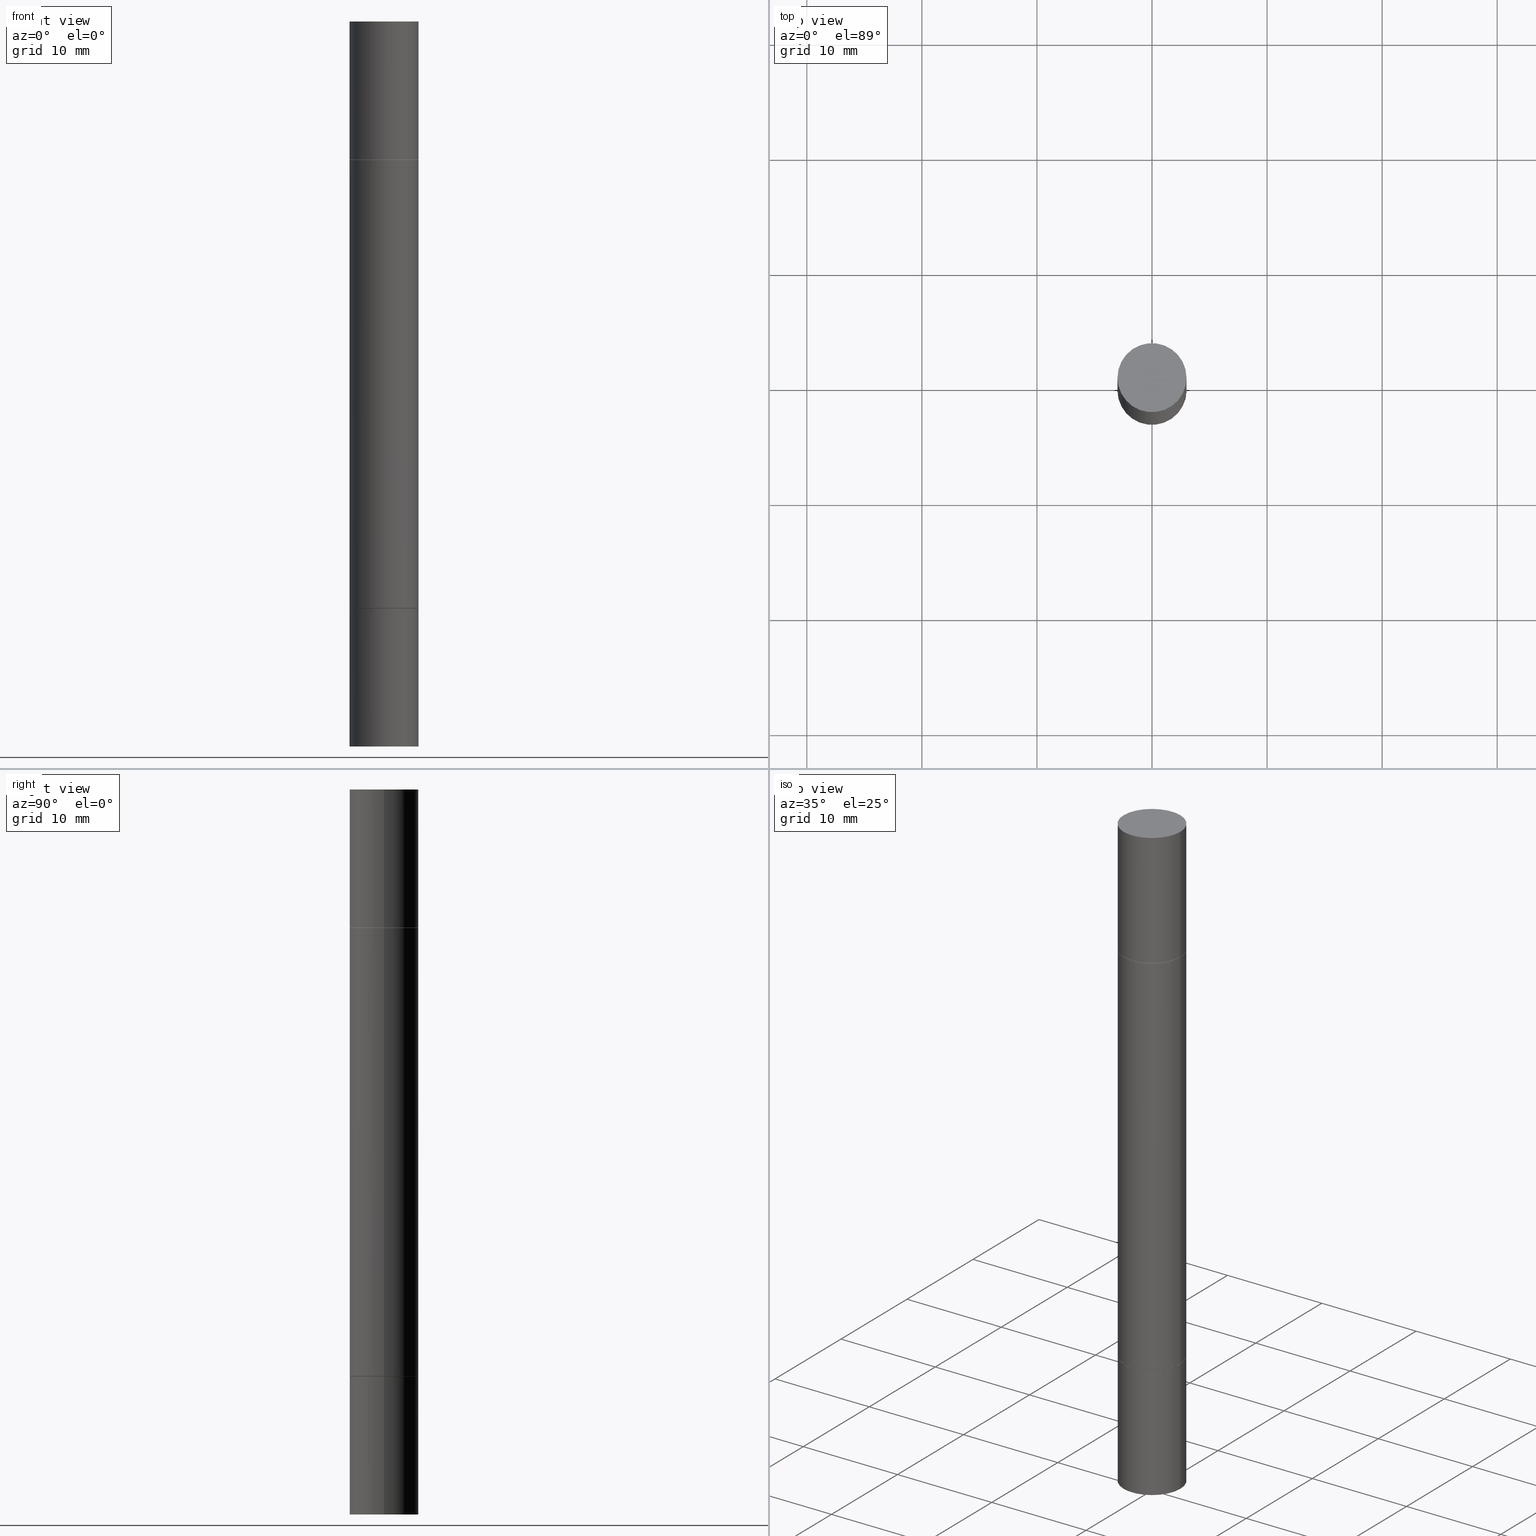
[diagram: canonical four-view strip — front | top / right | iso, engineering-drawing reading convention]
A machine part, canonical four-view strip (front | top / right | iso — engineering-drawing reading convention). The complete STEP part file that produces these views, byte-faithful:
ISO-10303-21;
HEADER;
FILE_DESCRIPTION (( 'STEP AP203' ),
    '1' );
FILE_NAME ('49040.STEP',
    '2024-03-04T15:52:24',
    ( '' ),
    ( '' ),
    'SwSTEP 2.0',
    'SolidWorks 2023',
    '' );
FILE_SCHEMA (( 'CONFIG_CONTROL_DESIGN' ));
ENDSEC;

DATA;
#1 = EDGE_LOOP ( 'NONE', ( #193, #551, #448, #294 ) ) ;
#2 = DATE_AND_TIME ( #634, #342 ) ;
#3 = CARTESIAN_POINT ( 'NONE',  ( 4.907811347132950827E-29, -7.007053898924308703E-15, -2.006899999999999906 ) ) ;
#4 = DIRECTION ( 'NONE',  ( 0.000000000000000000, 1.000000000000000000, -4.626330217890374069E-15 ) ) ;
#5 = CC_DESIGN_PERSON_AND_ORGANIZATION_ASSIGNMENT ( #633, #156, ( #97 ) ) ;
#6 = DIRECTION ( 'NONE',  ( 0.000000000000000000, 0.000000000000000000, 1.000000000000000000 ) ) ;
#7 = ORIENTED_EDGE ( 'NONE', *, *, #533, .T. ) ;
#8 = CONICAL_SURFACE ( 'NONE', #378, 0.1170999999999999958, 0.7853981633975507526 ) ;
#9 = CARTESIAN_POINT ( 'NONE',  ( -0.1180999999999999966, -7.851443812715413599E-15, -2.480299999999999727 ) ) ;
#10 = APPROVAL_PERSON_ORGANIZATION ( #108, #164, #311 ) ;
#11 = CYLINDRICAL_SURFACE ( 'NONE', #224, 0.1180999999999998856 ) ;
#12 = DIRECTION ( 'NONE',  ( 0.7071067811866199593, -7.407546758114499403E-15, -0.7071067811864750752 ) ) ;
#13 = ADVANCED_FACE ( 'NONE', ( #497 ), #30, .F. ) ;
#14 = ADVANCED_FACE ( 'NONE', ( #295 ), #35, .T. ) ;
#15 = DIRECTION ( 'NONE',  ( -2.445468806185136597E-29, 3.491481338843145583E-15, 1.000000000000000000 ) ) ;
#16 = DIRECTION ( 'NONE',  ( 1.000000000000000000, -6.982962677686265133E-15, 0.000000000000000000 ) ) ;
#17 = CARTESIAN_POINT ( 'NONE',  ( 0.1180999999999999966, -2.476474751543767778E-15, -0.4733999999999996544 ) ) ;
#18 = LINE ( 'NONE', #70, #666 ) ;
#19 = CALENDAR_DATE ( 2024, 4, 3 ) ;
#20 = PLANE ( 'NONE',  #225 ) ;
#21 = CIRCLE ( 'NONE', #216, 0.1180999999999999966 ) ;
#22 = DIRECTION ( 'NONE',  ( 1.000000000000000000, -6.982962677686265133E-15, 0.000000000000000000 ) ) ;
#23 = DIRECTION ( 'NONE',  ( -2.445468806185136597E-29, -3.492890411551752677E-15, -1.000000000000000000 ) ) ;
#24 = CARTESIAN_POINT ( 'NONE',  ( 4.910256815939135870E-29, -7.010545380263151710E-15, -2.007899999999999796 ) ) ;
#25 =( LENGTH_UNIT ( ) NAMED_UNIT ( * ) SI_UNIT ( $, .METRE. ) );
#26 = EDGE_LOOP ( 'NONE', ( #33, #87, #304, #462 ) ) ;
#27 = DIRECTION ( 'NONE',  ( -2.445468806185136597E-29, -3.492890411551752677E-15, -1.000000000000000000 ) ) ;
#28 = VERTEX_POINT ( 'NONE', #561 ) ;
#29 = DIRECTION ( 'NONE',  ( 1.000000000000000000, -6.982962677686264344E-15, 0.000000000000000000 ) ) ;
#30 = PLANE ( 'NONE',  #451 ) ;
#31 = CARTESIAN_POINT ( 'NONE',  ( 4.910256815939135870E-29, -1.648293968897468754E-15, -0.4723999999999998756 ) ) ;
#32 = EDGE_CURVE ( 'NONE', #351, #80, #539, .T. ) ;
#33 = ORIENTED_EDGE ( 'NONE', *, *, #488, .F. ) ;
#34 = DIRECTION ( 'NONE',  ( -2.438088387897959769E-29, -3.492890411551753071E-15, -1.000000000000000000 ) ) ;
#35 = PLANE ( 'NONE',  #151 ) ;
#36 = CARTESIAN_POINT ( 'NONE',  ( 4.907811347132950827E-29, -1.651786859309018332E-15, -0.4733999999999996544 ) ) ;
#37 = ORIENTED_EDGE ( 'NONE', *, *, #176, .T. ) ;
#38 = CARTESIAN_POINT ( 'NONE',  ( 0.1180999999999999966, -9.486356518486979401E-15, -2.480299999999999727 ) ) ;
#39 = EDGE_LOOP ( 'NONE', ( #442, #37, #48, #51 ) ) ;
#40 = AXIS2_PLACEMENT_3D ( 'NONE', #337, #229, #154 ) ;
#41 = DIRECTION ( 'NONE',  ( -0.7071067811866199593, 2.381258160592016740E-15, -0.7071067811864750752 ) ) ;
#42 = AXIS2_PLACEMENT_3D ( 'NONE', #307, #512, #49 ) ;
#43 = EDGE_LOOP ( 'NONE', ( #542, #612 ) ) ;
#44 = ADVANCED_FACE ( 'NONE', ( #291 ), #333, .T. ) ;
#45 = CYLINDRICAL_SURFACE ( 'NONE', #356, 0.1180999999999998856 ) ;
#46 = EDGE_LOOP ( 'NONE', ( #339, #657, #395, #676 ) ) ;
#47 = SHAPE_DEFINITION_REPRESENTATION ( #350, #149 ) ;
#48 = ORIENTED_EDGE ( 'NONE', *, *, #199, .T. ) ;
#49 = DIRECTION ( 'NONE',  ( 1.000000000000000000, -6.982962677686265133E-15, 0.000000000000000000 ) ) ;
#50 = MANIFOLD_SOLID_BREP ( 'Body-Move/Copy2[1]', #184 ) ;
#51 = ORIENTED_EDGE ( 'NONE', *, *, #252, .F. ) ;
#52 = MANIFOLD_SOLID_BREP ( 'Combine1', #492 ) ;
#53 = COORDINATED_UNIVERSAL_TIME_OFFSET ( 5, 0, .BEHIND. ) ;
#54 = VERTEX_POINT ( 'NONE', #192 ) ;
#55 = EDGE_CURVE ( 'NONE', #186, #389, #441, .T. ) ;
#56 = CARTESIAN_POINT ( 'NONE',  ( 6.065496279980994755E-29, -8.659921164732655335E-15, -2.480300000000000171 ) ) ;
#57 = EDGE_CURVE ( 'NONE', #300, #489, #526, .T. ) ;
#58 = PERSON_AND_ORGANIZATION ( #310, #584 ) ;
#59 = VECTOR ( 'NONE', #345, 39.37007874015748143 ) ;
#60 = DIRECTION ( 'NONE',  ( -2.445468806185136877E-29, -3.492890411551753071E-15, -1.000000000000000000 ) ) ;
#61 = CC_DESIGN_APPROVAL ( #231, ( #173 ) ) ;
#62 = ADVANCED_FACE ( 'NONE', ( #248 ), #284, .F. ) ;
#63 = CARTESIAN_POINT ( 'NONE',  ( 8.246878922347970734E-16, 0.1180999999999983452, -0.4723999999999998756 ) ) ;
#64 = EDGE_CURVE ( 'NONE', #489, #509, #90, .T. ) ;
#65 = DIRECTION ( 'NONE',  ( 1.000000000000000000, -6.982962677686264344E-15, 0.000000000000000000 ) ) ;
#66 = CARTESIAN_POINT ( 'NONE',  ( -0.1170999999999999958, -6.178499836688074522E-15, -2.007899999999999796 ) ) ;
#67 = CYLINDRICAL_SURFACE ( 'NONE', #113, 0.1180999999999999966 ) ;
#68 = CC_DESIGN_PERSON_AND_ORGANIZATION_ASSIGNMENT ( #293, #515, ( #409 ) ) ;
#69 = SECURITY_CLASSIFICATION_LEVEL ( 'unclassified' ) ;
#70 = CARTESIAN_POINT ( 'NONE',  ( 0.1180999999999998856, -9.486356518486979401E-15, -2.480299999999999727 ) ) ;
#71 = DIRECTION ( 'NONE',  ( -2.445468806185136877E-29, -3.492890411551753071E-15, -1.000000000000000000 ) ) ;
#72 = AXIS2_PLACEMENT_3D ( 'NONE', #425, #208, #520 ) ;
#73 = DIRECTION ( 'NONE',  ( 1.000000000000000000, -6.982962677686266711E-15, 4.876176775795936353E-29 ) ) ;
#74 = ORIENTED_EDGE ( 'NONE', *, *, #648, .T. ) ;
#75 = DIRECTION ( 'NONE',  ( 1.000000000000000000, -6.982962677686266711E-15, 0.000000000000000000 ) ) ;
#76 = ADVANCED_FACE ( 'NONE', ( #355 ), #418, .F. ) ;
#77 = CARTESIAN_POINT ( 'NONE',  ( 4.907811347132950827E-29, -7.007053898924308703E-15, -2.006899999999999906 ) ) ;
#78 = LINE ( 'NONE', #532, #590 ) ;
#79 = EDGE_LOOP ( 'NONE', ( #576, #459, #465, #617 ) ) ;
#80 = VERTEX_POINT ( 'NONE', #327 ) ;
#81 = LINE ( 'NONE', #102, #152 ) ;
#82 = DIRECTION ( 'NONE',  ( 2.445468806185136597E-29, 3.492890411551752677E-15, 1.000000000000000000 ) ) ;
#83 = ADVANCED_FACE ( 'NONE', ( #523 ), #11, .T. ) ;
#84 = EDGE_LOOP ( 'NONE', ( #7, #496 ) ) ;
#85 = CIRCLE ( 'NONE', #569, 0.1170999999999999958 ) ;
#86 = CIRCLE ( 'NONE', #159, 0.1170999999999999958 ) ;
#87 = ORIENTED_EDGE ( 'NONE', *, *, #111, .T. ) ;
#88 = EDGE_CURVE ( 'NONE', #246, #546, #433, .T. ) ;
#89 = DIRECTION ( 'NONE',  ( -2.445468806185136597E-29, 3.491481338843145583E-15, 1.000000000000000000 ) ) ;
#90 = LINE ( 'NONE', #406, #170 ) ;
#91 = EDGE_LOOP ( 'NONE', ( #454, #623, #227, #116 ) ) ;
#92 = ORIENTED_EDGE ( 'NONE', *, *, #282, .T. ) ;
#93 = CARTESIAN_POINT ( 'NONE',  ( 4.907811347132950827E-29, -1.651786859309018332E-15, -0.4733999999999996544 ) ) ;
#94 = DIRECTION ( 'NONE',  ( -2.445468806185136597E-29, -3.492890411551752677E-15, -1.000000000000000000 ) ) ;
#95 = ORIENTED_EDGE ( 'NONE', *, *, #199, .F. ) ;
#96 = DIRECTION ( 'NONE',  ( -2.445468806185136597E-29, 3.491481338843145583E-15, 1.000000000000000000 ) ) ;
#97 = PRODUCT ( '49040', '49040', '', ( #627 ) ) ;
#98 = DIRECTION ( 'NONE',  ( 1.000000000000000000, -6.982962677686265133E-15, 0.000000000000000000 ) ) ;
#99 = VERTEX_POINT ( 'NONE', #118 ) ;
#100 = CARTESIAN_POINT ( 'NONE',  ( -0.1180999999999998856, -2.180648907300854672E-15, -1.240149999999999864 ) ) ;
#101 = AXIS2_PLACEMENT_3D ( 'NONE', #3, #115, #366 ) ;
#102 = CARTESIAN_POINT ( 'NONE',  ( -0.1170999999999999958, -8.449296533584223333E-16, -0.4723999999999998756 ) ) ;
#103 = DIRECTION ( 'NONE',  ( 1.000000000000000000, -6.982962677686265133E-15, 0.000000000000000000 ) ) ;
#104 = CIRCLE ( 'NONE', #610, 0.1170999999999999958 ) ;
#105 = ORIENTED_EDGE ( 'NONE', *, *, #488, .T. ) ;
#106 = CYLINDRICAL_SURFACE ( 'NONE', #42, 0.1180999999999999966 ) ;
#107 = CC_DESIGN_PERSON_AND_ORGANIZATION_ASSIGNMENT ( #274, #485, ( #173 ) ) ;
#108 = PERSON_AND_ORGANIZATION ( #310, #584 ) ;
#109 = EDGE_CURVE ( 'NONE', #439, #509, #507, .T. ) ;
#110 = ORIENTED_EDGE ( 'NONE', *, *, #537, .F. ) ;
#111 = EDGE_CURVE ( 'NONE', #80, #351, #434, .T. ) ;
#112 = CIRCLE ( 'NONE', #215, 0.1180999999999999966 ) ;
#113 = AXIS2_PLACEMENT_3D ( 'NONE', #535, #478, #73 ) ;
#114 = DIRECTION ( 'NONE',  ( 2.445468806185136597E-29, 3.492890411551752677E-15, 1.000000000000000000 ) ) ;
#115 = DIRECTION ( 'NONE',  ( -2.445468806185136597E-29, 3.491481338843145583E-15, 1.000000000000000000 ) ) ;
#116 = ORIENTED_EDGE ( 'NONE', *, *, #421, .T. ) ;
#117 = AXIS2_PLACEMENT_3D ( 'NONE', #547, #141, #552 ) ;
#118 = CARTESIAN_POINT ( 'NONE',  ( 0.1180999999999999966, -2.472981861132215636E-15, -0.4723999999999995980 ) ) ;
#119 = FACE_OUTER_BOUND ( 'NONE', #39, .T. ) ;
#120 = PRODUCT_RELATED_PRODUCT_CATEGORY ( 'detail', '', ( #97 ) ) ;
#121 = DIRECTION ( 'NONE',  ( -1.000000000000000000, 6.982962677686265922E-15, -9.839502134516470631E-33 ) ) ;
#122 = FACE_OUTER_BOUND ( 'NONE', #43, .T. ) ;
#123 = FACE_OUTER_BOUND ( 'NONE', #289, .T. ) ;
#124 = AXIS2_PLACEMENT_3D ( 'NONE', #588, #114, #264 ) ;
#125 = PRODUCT_DEFINITION_FORMATION_WITH_SPECIFIED_SOURCE ( 'ANY', '', #97, .NOT_KNOWN. ) ;
#126 = EDGE_CURVE ( 'NONE', #574, #54, #640, .T. ) ;
#127 = DIRECTION ( 'NONE',  ( 1.000000000000000000, -6.982962677686264344E-15, 0.000000000000000000 ) ) ;
#128 = VERTEX_POINT ( 'NONE', #457 ) ;
#129 = ADVANCED_FACE ( 'NONE', ( #502 ), #255, .T. ) ;
#130 = EDGE_LOOP ( 'NONE', ( #501, #545 ) ) ;
#131 = ORIENTED_EDGE ( 'NONE', *, *, #155, .T. ) ;
#132 = DIRECTION ( 'NONE',  ( 0.000000000000000000, 1.000000000000000000, -4.626330217890374069E-15 ) ) ;
#133 = EDGE_CURVE ( 'NONE', #404, #259, #135, .T. ) ;
#134 = VERTEX_POINT ( 'NONE', #655 ) ;
#135 = CIRCLE ( 'NONE', #275, 0.1180999999999998856 ) ;
#136 = LOCAL_TIME ( 10, 52, 24.00000000000000000, #53 ) ;
#137 = ORIENTED_EDGE ( 'NONE', *, *, #64, .T. ) ;
#138 = LINE ( 'NONE', #493, #59 ) ;
#139 = ORIENTED_EDGE ( 'NONE', *, *, #383, .F. ) ;
#140 = ORIENTED_EDGE ( 'NONE', *, *, #637, .T. ) ;
#141 = DIRECTION ( 'NONE',  ( 2.445468806185136597E-29, 3.492890411551752677E-15, 1.000000000000000000 ) ) ;
#142 = VERTEX_POINT ( 'NONE', #444 ) ;
#143 = CARTESIAN_POINT ( 'NONE',  ( 4.910256815939135870E-29, -7.010545380263151710E-15, -2.007899999999999796 ) ) ;
#144 = DIRECTION ( 'NONE',  ( 0.000000000000000000, 3.492185875197449524E-15, 1.000000000000000000 ) ) ;
#145 = CYLINDRICAL_SURFACE ( 'NONE', #428, 0.1180999999999999966 ) ;
#146 = CIRCLE ( 'NONE', #101, 0.1180999999999999966 ) ;
#147 = DIRECTION ( 'NONE',  ( 2.438088387897959769E-29, 3.492890411551753071E-15, 1.000000000000000000 ) ) ;
#148 = ADVANCED_FACE ( 'NONE', ( #382 ), #567, .F. ) ;
#149 = ADVANCED_BREP_SHAPE_REPRESENTATION ( '49040', ( #50, #500, #494, #267, #52, #571 ), #554 ) ;
#150 = DIRECTION ( 'NONE',  ( 2.445468806185136597E-29, 3.492890411551752677E-15, 1.000000000000000000 ) ) ;
#151 = AXIS2_PLACEMENT_3D ( 'NONE', #239, #663, #348 ) ;
#152 = VECTOR ( 'NONE', #41, 39.37007874015748143 ) ;
#153 = AXIS2_PLACEMENT_3D ( 'NONE', #568, #675, #103 ) ;
#154 = DIRECTION ( 'NONE',  ( 1.000000000000000000, -6.982962677686264344E-15, 0.000000000000000000 ) ) ;
#155 = EDGE_CURVE ( 'NONE', #54, #574, #204, .T. ) ;
#156 = PERSON_AND_ORGANIZATION_ROLE ( 'design_owner' ) ;
#157 = CARTESIAN_POINT ( 'NONE',  ( 6.065496279980994755E-29, 1.747461519580534218E-18, 5.463695987328526437E-16 ) ) ;
#158 = CC_DESIGN_DATE_AND_TIME_ASSIGNMENT ( #214, #524, ( #409 ) ) ;
#159 = AXIS2_PLACEMENT_3D ( 'NONE', #490, #531, #270 ) ;
#160 = DIRECTION ( 'NONE',  ( 2.438088387897959769E-29, 3.492890411551753071E-15, 1.000000000000000000 ) ) ;
#161 = DIRECTION ( 'NONE',  ( 2.445468806185136597E-29, 3.492890411551752677E-15, 1.000000000000000000 ) ) ;
#162 = LINE ( 'NONE', #381, #388 ) ;
#163 = CARTESIAN_POINT ( 'NONE',  ( 0.000000000000000000, -8.661668626252231138E-15, -2.480299999999999727 ) ) ;
#164 = APPROVAL ( #205, 'UNSPECIFIED' ) ;
#165 = ADVANCED_FACE ( 'NONE', ( #183 ), #145, .T. ) ;
#166 = DIRECTION ( 'NONE',  ( 1.000000000000000000, -6.982962677686265133E-15, 0.000000000000000000 ) ) ;
#167 = COORDINATED_UNIVERSAL_TIME_OFFSET ( 5, 0, .BEHIND. ) ;
#168 = DIRECTION ( 'NONE',  ( 2.438088387897960049E-29, -3.491481338843145188E-15, -1.000000000000000000 ) ) ;
#169 = PLANE ( 'NONE',  #429 ) ;
#170 = VECTOR ( 'NONE', #468, 39.37007874015748143 ) ;
#171 = DATE_TIME_ROLE ( 'classification_date' ) ;
#172 = AXIS2_PLACEMENT_3D ( 'NONE', #93, #449, #665 ) ;
#173 = SECURITY_CLASSIFICATION ( '', '', #69 ) ;
#174 = ORIENTED_EDGE ( 'NONE', *, *, #320, .T. ) ;
#175 = DIRECTION ( 'NONE',  ( 1.000000000000000000, -6.982962677686271444E-15, 0.000000000000000000 ) ) ;
#176 = EDGE_CURVE ( 'NONE', #343, #546, #81, .T. ) ;
#177 = ORIENTED_EDGE ( 'NONE', *, *, #238, .F. ) ;
#178 = ADVANCED_FACE ( 'NONE', ( #671 ), #387, .T. ) ;
#179 = ORIENTED_EDGE ( 'NONE', *, *, #471, .F. ) ;
#180 = CARTESIAN_POINT ( 'NONE',  ( 4.910256815939135870E-29, -1.648293968897468754E-15, -0.4723999999999998756 ) ) ;
#181 = DIRECTION ( 'NONE',  ( -2.438088387897960049E-29, 3.491481338843145188E-15, 1.000000000000000000 ) ) ;
#182 = EDGE_LOOP ( 'NONE', ( #384, #470, #92, #504 ) ) ;
#183 = FACE_OUTER_BOUND ( 'NONE', #236, .T. ) ;
#184 = CLOSED_SHELL ( 'NONE', ( #165, #575, #148, #467 ) ) ;
#185 = CIRCLE ( 'NONE', #474, 0.1180999999999999966 ) ;
#186 = VERTEX_POINT ( 'NONE', #562 ) ;
#187 = AXIS2_PLACEMENT_3D ( 'NONE', #77, #283, #380 ) ;
#188 = FACE_OUTER_BOUND ( 'NONE', #251, .T. ) ;
#189 = AXIS2_PLACEMENT_3D ( 'NONE', #253, #619, #463 ) ;
#190 = ORIENTED_EDGE ( 'NONE', *, *, #537, .T. ) ;
#191 = DIRECTION ( 'NONE',  ( -2.445468806185136597E-29, -3.492890411551752677E-15, -1.000000000000000000 ) ) ;
#192 = CARTESIAN_POINT ( 'NONE',  ( -0.1180999999999999966, -1.304844015212474234E-17, -0.4723999999999995980 ) ) ;
#193 = ORIENTED_EDGE ( 'NONE', *, *, #565, .F. ) ;
#194 = LINE ( 'NONE', #303, #527 ) ;
#195 = CARTESIAN_POINT ( 'NONE',  ( 3.032748139990496817E-29, -4.329960582366326879E-15, -1.240149999999999864 ) ) ;
#196 = CARTESIAN_POINT ( 'NONE',  ( 8.246878922347970734E-16, 0.1180999999999983452, -0.4723999999999998756 ) ) ;
#197 = EDGE_LOOP ( 'NONE', ( #306, #336, #137, #437 ) ) ;
#198 = CIRCLE ( 'NONE', #589, 0.1180999999999999966 ) ;
#199 = EDGE_CURVE ( 'NONE', #546, #246, #112, .T. ) ;
#200 = EDGE_CURVE ( 'NONE', #389, #134, #553, .T. ) ;
#201 = EDGE_CURVE ( 'NONE', #407, #28, #185, .T. ) ;
#202 = FACE_OUTER_BOUND ( 'NONE', #674, .T. ) ;
#203 = VERTEX_POINT ( 'NONE', #290 ) ;
#204 = CIRCLE ( 'NONE', #581, 0.1180999999999999966 ) ;
#205 = APPROVAL_STATUS ( 'not_yet_approved' ) ;
#206 = CARTESIAN_POINT ( 'NONE',  ( 0.1180999999999999966, -8.246878922347480654E-16, 5.758764772215000440E-30 ) ) ;
#207 = CARTESIAN_POINT ( 'NONE',  ( 0.000000000000000000, -8.661668626252231138E-15, -2.480299999999999727 ) ) ;
#208 = DIRECTION ( 'NONE',  ( -2.438088387897959769E-29, -3.492890411551753071E-15, -1.000000000000000000 ) ) ;
#209 = APPROVAL ( #323, 'UNSPECIFIED' ) ;
#210 = DATE_AND_TIME ( #600, #263 ) ;
#211 = DIRECTION ( 'NONE',  ( 0.7071067811866199593, -2.468850131083015945E-15, 0.7071067811864750752 ) ) ;
#212 = EDGE_CURVE ( 'NONE', #399, #491, #85, .T. ) ;
#213 = DATE_AND_TIME ( #377, #379 ) ;
#214 = DATE_AND_TIME ( #19, #136 ) ;
#215 = AXIS2_PLACEMENT_3D ( 'NONE', #36, #498, #98 ) ;
#216 = AXIS2_PLACEMENT_3D ( 'NONE', #482, #161, #22 ) ;
#217 = EDGE_CURVE ( 'NONE', #28, #559, #138, .T. ) ;
#218 = CARTESIAN_POINT ( 'NONE',  ( 4.910256815939135870E-29, -1.648293968897468754E-15, -0.4723999999999998756 ) ) ;
#219 = CARTESIAN_POINT ( 'NONE',  ( 0.1180999999999999966, -7.831741791159056177E-15, -2.006899999999999906 ) ) ;
#220 = CARTESIAN_POINT ( 'NONE',  ( 8.246878922348086105E-16, 0.1180999999999913369, -2.480300000000001059 ) ) ;
#221 = APPLICATION_CONTEXT ( 'configuration controlled 3d designs of mechanical parts and assemblies' ) ;
#222 = EDGE_CURVE ( 'NONE', #489, #300, #579, .T. ) ;
#223 = EDGE_CURVE ( 'NONE', #343, #128, #664, .T. ) ;
#224 = AXIS2_PLACEMENT_3D ( 'NONE', #207, #365, #636 ) ;
#225 = AXIS2_PLACEMENT_3D ( 'NONE', #271, #160, #593 ) ;
#226 = CONICAL_SURFACE ( 'NONE', #279, 0.1170999999999999958, 0.7853981633975507526 ) ;
#227 = ORIENTED_EDGE ( 'NONE', *, *, #549, .T. ) ;
#228 = DIRECTION ( 'NONE',  ( -2.445468806185136877E-29, -3.492890411551753071E-15, -1.000000000000000000 ) ) ;
#229 = DIRECTION ( 'NONE',  ( 2.445468806185136597E-29, 3.492890411551752677E-15, 1.000000000000000000 ) ) ;
#230 = ORIENTED_EDGE ( 'NONE', *, *, #64, .F. ) ;
#231 = APPROVAL ( #426, 'UNSPECIFIED' ) ;
#232 = ORIENTED_EDGE ( 'NONE', *, *, #32, .T. ) ;
#233 = DIRECTION ( 'NONE',  ( 1.000000000000000000, -6.982962677686264344E-15, 0.000000000000000000 ) ) ;
#234 = COORDINATED_UNIVERSAL_TIME_OFFSET ( 5, 0, .BEHIND. ) ;
#235 = COORDINATED_UNIVERSAL_TIME_OFFSET ( 5, 0, .BEHIND. ) ;
#236 = EDGE_LOOP ( 'NONE', ( #556, #288, #110, #511 ) ) ;
#237 = FACE_OUTER_BOUND ( 'NONE', #566, .T. ) ;
#238 = EDGE_CURVE ( 'NONE', #186, #142, #602, .T. ) ;
#239 = CARTESIAN_POINT ( 'NONE',  ( 8.246878922348086105E-16, 0.1181000000000000105, 0.000000000000000000 ) ) ;
#240 = CARTESIAN_POINT ( 'NONE',  ( 4.910256815939136430E-29, -7.010545380263152499E-15, -2.007900000000000240 ) ) ;
#241 = DATE_AND_TIME ( #445, #357 ) ;
#242 = AXIS2_PLACEMENT_3D ( 'NONE', #24, #660, #127 ) ;
#243 = AXIS2_PLACEMENT_3D ( 'NONE', #266, #413, #580 ) ;
#244 = CIRCLE ( 'NONE', #518, 0.1180999999999999966 ) ;
#245 = DIRECTION ( 'NONE',  ( -2.445468806185136597E-29, -3.492890411551752677E-15, -1.000000000000000000 ) ) ;
#246 = VERTEX_POINT ( 'NONE', #525 ) ;
#247 = DIRECTION ( 'NONE',  ( -1.000000000000000000, 6.982962677686265922E-15, -4.876176775795935793E-29 ) ) ;
#248 = FACE_OUTER_BOUND ( 'NONE', #130, .T. ) ;
#249 = EDGE_CURVE ( 'NONE', #509, #439, #146, .T. ) ;
#250 = ORIENTED_EDGE ( 'NONE', *, *, #176, .F. ) ;
#251 = EDGE_LOOP ( 'NONE', ( #179, #316, #74, #391 ) ) ;
#252 = EDGE_CURVE ( 'NONE', #128, #246, #260, .T. ) ;
#253 = CARTESIAN_POINT ( 'NONE',  ( 0.000000000000000000, -8.661668626252231138E-15, -2.480299999999999727 ) ) ;
#254 = ADVANCED_FACE ( 'NONE', ( #202 ), #422, .F. ) ;
#255 = CONICAL_SURFACE ( 'NONE', #313, 0.1170999999999999958, 0.7853981633975507526 ) ;
#256 = AXIS2_PLACEMENT_3D ( 'NONE', #218, #529, #430 ) ;
#257 = DIRECTION ( 'NONE',  ( 1.000000000000000000, 0.000000000000000000, 0.000000000000000000 ) ) ;
#258 =( NAMED_UNIT ( * ) SI_UNIT ( $, .STERADIAN. ) SOLID_ANGLE_UNIT ( ) );
#259 = VERTEX_POINT ( 'NONE', #626 ) ;
#260 = LINE ( 'NONE', #472, #416 ) ;
#261 = AXIS2_PLACEMENT_3D ( 'NONE', #63, #424, #121 ) ;
#262 = VECTOR ( 'NONE', #419, 39.37007874015748143 ) ;
#263 = LOCAL_TIME ( 10, 52, 24.00000000000000000, #167 ) ;
#264 = DIRECTION ( 'NONE',  ( 1.000000000000000000, -6.982962677686266711E-15, 0.000000000000000000 ) ) ;
#265 = FACE_OUTER_BOUND ( 'NONE', #197, .T. ) ;
#266 = CARTESIAN_POINT ( 'NONE',  ( 0.000000000000000000, -8.661668626252231138E-15, -2.480299999999999727 ) ) ;
#267 = MANIFOLD_SOLID_BREP ( 'Mirror1[4]', #578 ) ;
#268 = LINE ( 'NONE', #375, #621 ) ;
#269 = PERSON_AND_ORGANIZATION ( #310, #584 ) ;
#270 = DIRECTION ( 'NONE',  ( 1.000000000000000000, -6.982962677686264344E-15, 0.000000000000000000 ) ) ;
#271 = CARTESIAN_POINT ( 'NONE',  ( 8.246878922348086105E-16, 0.1181000000000000105, 0.000000000000000000 ) ) ;
#272 = CARTESIAN_POINT ( 'NONE',  ( 0.000000000000000000, -8.661668626252231138E-15, -2.480299999999999727 ) ) ;
#273 = CARTESIAN_POINT ( 'NONE',  ( 4.907811347132950827E-29, -1.651786859309018332E-15, -0.4733999999999996544 ) ) ;
#274 = PERSON_AND_ORGANIZATION ( #310, #584 ) ;
#275 = AXIS2_PLACEMENT_3D ( 'NONE', #195, #396, #132 ) ;
#276 = CARTESIAN_POINT ( 'NONE',  ( -0.1180999999999999966, -8.415620457722018772E-16, -0.4733999999999996544 ) ) ;
#277 = EDGE_CURVE ( 'NONE', #203, #54, #635, .T. ) ;
#278 = AXIS2_PLACEMENT_3D ( 'NONE', #281, #647, #75 ) ;
#279 = AXIS2_PLACEMENT_3D ( 'NONE', #331, #538, #65 ) ;
#280 = DIMENSIONAL_EXPONENTS ( 1.000000000000000000, 0.000000000000000000, 0.000000000000000000, 0.000000000000000000, 0.000000000000000000, 0.000000000000000000, 0.000000000000000000 ) ;
#281 = CARTESIAN_POINT ( 'NONE',  ( 6.065496279980994755E-29, 1.747461519580534218E-18, 5.463695987328526437E-16 ) ) ;
#282 = EDGE_CURVE ( 'NONE', #142, #134, #361, .T. ) ;
#283 = DIRECTION ( 'NONE',  ( -2.445468806185136597E-29, 3.491481338843145583E-15, 1.000000000000000000 ) ) ;
#284 = PLANE ( 'NONE',  #473 ) ;
#285 = CARTESIAN_POINT ( 'NONE',  ( 4.910256815939135870E-29, -1.648293968897468754E-15, -0.4723999999999998756 ) ) ;
#286 = DIRECTION ( 'NONE',  ( -2.445468806185136597E-29, 3.491481338843145583E-15, 1.000000000000000000 ) ) ;
#287 = CARTESIAN_POINT ( 'NONE',  ( 4.910256815939136430E-29, -7.010545380263152499E-15, -2.007900000000000240 ) ) ;
#288 = ORIENTED_EDGE ( 'NONE', *, *, #55, .T. ) ;
#289 = EDGE_LOOP ( 'NONE', ( #335, #443, #131, #139 ) ) ;
#290 = CARTESIAN_POINT ( 'NONE',  ( -0.1180999999999999966, -1.304844015212474234E-17, 5.463695987328556019E-16 ) ) ;
#291 = FACE_OUTER_BOUND ( 'NONE', #312, .T. ) ;
#292 = EDGE_CURVE ( 'NONE', #203, #673, #452, .T. ) ;
#293 = PERSON_AND_ORGANIZATION ( #310, #584 ) ;
#294 = ORIENTED_EDGE ( 'NONE', *, *, #549, .F. ) ;
#295 = FACE_OUTER_BOUND ( 'NONE', #446, .T. ) ;
#296 = DIRECTION ( 'NONE',  ( 2.445468806185136597E-29, 3.492890411551752677E-15, 1.000000000000000000 ) ) ;
#297 = EDGE_CURVE ( 'NONE', #673, #203, #341, .T. ) ;
#298 = ORIENTED_EDGE ( 'NONE', *, *, #320, .F. ) ;
#299 = CARTESIAN_POINT ( 'NONE',  ( 0.000000000000000000, -8.661668626252231138E-15, -2.480299999999999727 ) ) ;
#300 = VERTEX_POINT ( 'NONE', #322 ) ;
#301 = CARTESIAN_POINT ( 'NONE',  ( 4.910256815939136430E-29, -1.648293968897467768E-15, -0.4723999999999995980 ) ) ;
#302 = ORIENTED_EDGE ( 'NONE', *, *, #495, .F. ) ;
#303 = CARTESIAN_POINT ( 'NONE',  ( 0.1170999999999999958, -2.465998898454530016E-15, -0.4723999999999998756 ) ) ;
#304 = ORIENTED_EDGE ( 'NONE', *, *, #411, .T. ) ;
#305 = DIRECTION ( 'NONE',  ( 2.445468806185136597E-29, 3.492890411551752677E-15, 1.000000000000000000 ) ) ;
#306 = ORIENTED_EDGE ( 'NONE', *, *, #582, .F. ) ;
#307 = CARTESIAN_POINT ( 'NONE',  ( 0.000000000000000000, -8.661668626252231138E-15, -2.480299999999999727 ) ) ;
#308 = LENGTH_MEASURE_WITH_UNIT ( LENGTH_MEASURE( 0.02539999999999999897 ), #25 );
#309 = ORIENTED_EDGE ( 'NONE', *, *, #88, .T. ) ;
#310 = PERSON ( 'UNSPECIFIED', 'UNSPECIFIED', 'UNSPECIFIED', ('UNSPECIFIED'), ('UNSPECIFIED'), ('UNSPECIFIED') ) ;
#311 = APPROVAL_ROLE ( '' ) ;
#312 = EDGE_LOOP ( 'NONE', ( #338, #400, #628, #230 ) ) ;
#313 = AXIS2_PLACEMENT_3D ( 'NONE', #180, #191, #505 ) ;
#314 = VECTOR ( 'NONE', #431, 39.37007874015748143 ) ;
#315 = CARTESIAN_POINT ( 'NONE',  ( 3.032748139990496817E-29, -4.329960582366326879E-15, -1.240149999999999864 ) ) ;
#316 = ORIENTED_EDGE ( 'NONE', *, *, #88, .F. ) ;
#317 = ADVANCED_FACE ( 'NONE', ( #476 ), #528, .T. ) ;
#318 = DIRECTION ( 'NONE',  ( 1.000000000000000000, -6.982962677686273021E-15, 0.000000000000000000 ) ) ;
#319 = AXIS2_PLACEMENT_3D ( 'NONE', #157, #150, #587 ) ;
#320 = EDGE_CURVE ( 'NONE', #259, #404, #403, .T. ) ;
#321 = CARTESIAN_POINT ( 'NONE',  ( -0.1180999999999999966, -1.304844015212474234E-17, -0.4723999999999995980 ) ) ;
#322 = CARTESIAN_POINT ( 'NONE',  ( -0.1180999999999999966, -8.415620457722018772E-16, -0.4733999999999996544 ) ) ;
#323 = APPROVAL_STATUS ( 'not_yet_approved' ) ;
#324 = DIRECTION ( 'NONE',  ( 1.000000000000000000, -6.982962677686264344E-15, 0.000000000000000000 ) ) ;
#325 = FACE_OUTER_BOUND ( 'NONE', #182, .T. ) ;
#326 = LINE ( 'NONE', #372, #314 ) ;
#327 = CARTESIAN_POINT ( 'NONE',  ( -0.1170999999999999958, -6.173201382339852908E-15, -2.007899999999999796 ) ) ;
#328 = ADVANCED_FACE ( 'NONE', ( #631 ), #564, .F. ) ;
#329 = PERSON_AND_ORGANIZATION ( #310, #584 ) ;
#330 = DIRECTION ( 'NONE',  ( -2.445468806185136877E-29, -3.492890411551753071E-15, -1.000000000000000000 ) ) ;
#331 = CARTESIAN_POINT ( 'NONE',  ( 4.910256815939135870E-29, -7.010545380263151710E-15, -2.007899999999999796 ) ) ;
#332 = AXIS2_PLACEMENT_3D ( 'NONE', #503, #34, #662 ) ;
#333 = CYLINDRICAL_SURFACE ( 'NONE', #414, 0.1180999999999998856 ) ;
#334 = PERSON_AND_ORGANIZATION ( #310, #584 ) ;
#335 = ORIENTED_EDGE ( 'NONE', *, *, #292, .F. ) ;
#336 = ORIENTED_EDGE ( 'NONE', *, *, #222, .F. ) ;
#337 = CARTESIAN_POINT ( 'NONE',  ( 4.910256815939135870E-29, -1.648293968897468754E-15, -0.4723999999999998756 ) ) ;
#338 = ORIENTED_EDGE ( 'NONE', *, *, #57, .F. ) ;
#339 = ORIENTED_EDGE ( 'NONE', *, *, #212, .F. ) ;
#340 = DIRECTION ( 'NONE',  ( 1.000000000000000000, -6.982962677686265133E-15, 0.000000000000000000 ) ) ;
#341 = CIRCLE ( 'NONE', #124, 0.1180999999999999966 ) ;
#342 = LOCAL_TIME ( 10, 52, 24.00000000000000000, #235 ) ;
#343 = VERTEX_POINT ( 'NONE', #394 ) ;
#344 = DIRECTION ( 'NONE',  ( 0.000000000000000000, 1.000000000000000000, -3.492185875197449524E-15 ) ) ;
#345 = DIRECTION ( 'NONE',  ( -2.445468806185136877E-29, -3.492890411551753071E-15, -1.000000000000000000 ) ) ;
#346 = UNCERTAINTY_MEASURE_WITH_UNIT (LENGTH_MEASURE( 1.000000000000000082E-05 ), #679, 'distance_accuracy_value', 'NONE');
#347 = LINE ( 'NONE', #38, #649 ) ;
#348 = DIRECTION ( 'NONE',  ( -1.000000000000000000, 6.982962677686265922E-15, -9.839502134516470631E-33 ) ) ;
#349 = DIRECTION ( 'NONE',  ( 2.438088387897960049E-29, -3.491481338843145188E-15, -1.000000000000000000 ) ) ;
#350 = PRODUCT_DEFINITION_SHAPE ( 'NONE', 'NONE',  #409 ) ;
#351 = VERTEX_POINT ( 'NONE', #560 ) ;
#352 = CARTESIAN_POINT ( 'NONE',  ( -0.1170999999999999958, -8.432458495653122039E-16, -0.4723999999999998756 ) ) ;
#353 = DIRECTION ( 'NONE',  ( 1.000000000000000000, -6.982962677686266711E-15, 4.876176775795936353E-29 ) ) ;
#354 = DIRECTION ( 'NONE',  ( 2.445468806185136597E-29, 3.492890411551752677E-15, 1.000000000000000000 ) ) ;
#355 = FACE_OUTER_BOUND ( 'NONE', #557, .T. ) ;
#356 = AXIS2_PLACEMENT_3D ( 'NONE', #299, #245, #390 ) ;
#357 = LOCAL_TIME ( 10, 52, 24.00000000000000000, #234 ) ;
#358 = DIRECTION ( 'NONE',  ( -1.000000000000000000, 6.982962677686265922E-15, -9.839502134516470631E-33 ) ) ;
#359 = EDGE_LOOP ( 'NONE', ( #190, #415 ) ) ;
#360 = CC_DESIGN_DATE_AND_TIME_ASSIGNMENT ( #210, #171, ( #173 ) ) ;
#361 = LINE ( 'NONE', #206, #262 ) ;
#362 = AXIS2_PLACEMENT_3D ( 'NONE', #56, #15, #318 ) ;
#363 = APPLICATION_PROTOCOL_DEFINITION ( 'international standard', 'config_control_design', 1994, #221 ) ;
#364 = ADVANCED_FACE ( 'NONE', ( #237 ), #8, .T. ) ;
#365 = DIRECTION ( 'NONE',  ( -2.445468806185136597E-29, -3.492890411551752677E-15, -1.000000000000000000 ) ) ;
#366 = DIRECTION ( 'NONE',  ( 1.000000000000000000, -6.982962677686265133E-15, 0.000000000000000000 ) ) ;
#367 = CONICAL_SURFACE ( 'NONE', #256, 0.1170999999999999958, 0.7853981633975507526 ) ;
#368 = AXIS2_PLACEMENT_3D ( 'NONE', #285, #27, #324 ) ;
#369 = ADVANCED_FACE ( 'NONE', ( #188 ), #45, .T. ) ;
#370 = LINE ( 'NONE', #592, #405 ) ;
#371 = FACE_OUTER_BOUND ( 'NONE', #668, .T. ) ;
#372 = CARTESIAN_POINT ( 'NONE',  ( -0.1180999999999998856, -7.851443812715415176E-15, -2.480299999999999727 ) ) ;
#373 = CARTESIAN_POINT ( 'NONE',  ( 0.1180999999999999966, -8.229404307151675296E-16, 5.463695987328526437E-16 ) ) ;
#374 = CARTESIAN_POINT ( 'NONE',  ( 0.1180999999999999966, -2.472981861132215636E-15, -0.4723999999999995980 ) ) ;
#375 = CARTESIAN_POINT ( 'NONE',  ( 0.1170999999999999958, -7.828250309820213170E-15, -2.007899999999999796 ) ) ;
#376 = DIRECTION ( 'NONE',  ( -0.7071067811866199593, 7.493145998870616062E-15, 0.7071067811864750752 ) ) ;
#377 = CALENDAR_DATE ( 2024, 4, 3 ) ;
#378 = AXIS2_PLACEMENT_3D ( 'NONE', #143, #96, #447 ) ;
#379 = LOCAL_TIME ( 10, 52, 24.00000000000000000, #642 ) ;
#380 = DIRECTION ( 'NONE',  ( 1.000000000000000000, -6.982962677686265133E-15, 0.000000000000000000 ) ) ;
#381 = CARTESIAN_POINT ( 'NONE',  ( -0.1180999999999998856, -7.851443812715415176E-15, -2.480299999999999727 ) ) ;
#382 = FACE_OUTER_BOUND ( 'NONE', #359, .T. ) ;
#383 = EDGE_CURVE ( 'NONE', #673, #574, #347, .T. ) ;
#384 = ORIENTED_EDGE ( 'NONE', *, *, #55, .F. ) ;
#385 = CARTESIAN_POINT ( 'NONE',  ( 0.000000000000000000, 0.000000000000000000, -1.240149999999999864 ) ) ;
#386 = DIRECTION ( 'NONE',  ( 1.000000000000000000, -6.982962677686265133E-15, 0.000000000000000000 ) ) ;
#387 = CONICAL_SURFACE ( 'NONE', #516, 0.1170999999999999958, 0.7853981633975507526 ) ;
#388 = VECTOR ( 'NONE', #330, 39.37007874015748143 ) ;
#389 = VERTEX_POINT ( 'NONE', #455 ) ;
#390 = DIRECTION ( 'NONE',  ( 1.000000000000000000, -6.982962677686271444E-15, 0.000000000000000000 ) ) ;
#391 = ORIENTED_EDGE ( 'NONE', *, *, #133, .F. ) ;
#392 = CARTESIAN_POINT ( 'NONE',  ( 0.000000000000000000, 0.000000000000000000, 0.000000000000000000 ) ) ;
#393 = ORIENTED_EDGE ( 'NONE', *, *, #596, .F. ) ;
#394 = CARTESIAN_POINT ( 'NONE',  ( -0.1170999999999999958, -8.432458495653122039E-16, -0.4723999999999998756 ) ) ;
#395 = ORIENTED_EDGE ( 'NONE', *, *, #57, .T. ) ;
#396 = DIRECTION ( 'NONE',  ( -0.000000000000000000, -3.492185875197449130E-15, -1.000000000000000000 ) ) ;
#397 = EDGE_CURVE ( 'NONE', #491, #489, #194, .T. ) ;
#398 = APPLICATION_CONTEXT ( 'configuration controlled 3d designs of mechanical parts and assemblies' ) ;
#399 = VERTEX_POINT ( 'NONE', #352 ) ;
#400 = ORIENTED_EDGE ( 'NONE', *, *, #582, .T. ) ;
#401 = ORIENTED_EDGE ( 'NONE', *, *, #648, .F. ) ;
#402 = FACE_OUTER_BOUND ( 'NONE', #410, .T. ) ;
#403 = CIRCLE ( 'NONE', #630, 0.1180999999999998856 ) ;
#404 = VERTEX_POINT ( 'NONE', #100 ) ;
#405 = VECTOR ( 'NONE', #653, 39.37007874015748143 ) ;
#406 = CARTESIAN_POINT ( 'NONE',  ( 0.1180999999999998856, -9.486356518486979401E-15, -2.480299999999999727 ) ) ;
#407 = VERTEX_POINT ( 'NONE', #508 ) ;
#408 = ADVANCED_FACE ( 'NONE', ( #122 ), #20, .T. ) ;
#409 = PRODUCT_DEFINITION ( 'UNKNOWN', '', #125, #435 ) ;
#410 = EDGE_LOOP ( 'NONE', ( #670, #302 ) ) ;
#411 = EDGE_CURVE ( 'NONE', #351, #509, #268, .T. ) ;
#412 = APPLICATION_PROTOCOL_DEFINITION ( 'international standard', 'config_control_design', 1994, #398 ) ;
#413 = DIRECTION ( 'NONE',  ( -2.445468806185136597E-29, -3.492890411551752677E-15, -1.000000000000000000 ) ) ;
#414 = AXIS2_PLACEMENT_3D ( 'NONE', #499, #94, #175 ) ;
#415 = ORIENTED_EDGE ( 'NONE', *, *, #200, .T. ) ;
#416 = VECTOR ( 'NONE', #12, 39.37007874015748143 ) ;
#417 = CC_DESIGN_APPROVAL ( #164, ( #409 ) ) ;
#418 = PLANE ( 'NONE',  #261 ) ;
#419 = DIRECTION ( 'NONE',  ( -2.445468806185136877E-29, 3.491481338843145188E-15, 1.000000000000000000 ) ) ;
#420 = EDGE_LOOP ( 'NONE', ( #393, #607, #517, #550 ) ) ;
#421 = EDGE_CURVE ( 'NONE', #99, #559, #198, .T. ) ;
#422 = PLANE ( 'NONE',  #72 ) ;
#423 = ADVANCED_FACE ( 'NONE', ( #371 ), #367, .T. ) ;
#424 = DIRECTION ( 'NONE',  ( 2.438088387897959769E-29, 3.492890411551753071E-15, 1.000000000000000000 ) ) ;
#425 = CARTESIAN_POINT ( 'NONE',  ( 4.910256815939136430E-29, -1.648293968897467768E-15, -0.4723999999999995980 ) ) ;
#426 = APPROVAL_STATUS ( 'not_yet_approved' ) ;
#427 = DIRECTION ( 'NONE',  ( -2.445468806185136597E-29, 3.491481338843145583E-15, 1.000000000000000000 ) ) ;
#428 = AXIS2_PLACEMENT_3D ( 'NONE', #392, #286, #353 ) ;
#429 = AXIS2_PLACEMENT_3D ( 'NONE', #220, #168, #599 ) ;
#430 = DIRECTION ( 'NONE',  ( 1.000000000000000000, -6.982962677686264344E-15, 0.000000000000000000 ) ) ;
#431 = DIRECTION ( 'NONE',  ( -2.445468806185136877E-29, -3.492890411551753071E-15, -1.000000000000000000 ) ) ;
#432 = APPROVAL_ROLE ( '' ) ;
#433 = CIRCLE ( 'NONE', #620, 0.1180999999999999966 ) ;
#434 = CIRCLE ( 'NONE', #609, 0.1170999999999999958 ) ;
#435 = DESIGN_CONTEXT ( 'detailed design', #221, 'design' ) ;
#436 = CC_DESIGN_SECURITY_CLASSIFICATION ( #173, ( #125 ) ) ;
#437 = ORIENTED_EDGE ( 'NONE', *, *, #249, .T. ) ;
#438 = CARTESIAN_POINT ( 'NONE',  ( 4.910256815939135870E-29, -7.010545380263151710E-15, -2.007899999999999796 ) ) ;
#439 = VERTEX_POINT ( 'NONE', #644 ) ;
#440 = CARTESIAN_POINT ( 'NONE',  ( 4.910256815939135870E-29, -1.648293968897468754E-15, -0.4723999999999998756 ) ) ;
#441 = LINE ( 'NONE', #548, #629 ) ;
#442 = ORIENTED_EDGE ( 'NONE', *, *, #223, .F. ) ;
#443 = ORIENTED_EDGE ( 'NONE', *, *, #277, .T. ) ;
#444 = CARTESIAN_POINT ( 'NONE',  ( 0.1180999999999999966, -9.484609056967403598E-15, -2.480300000000000171 ) ) ;
#445 = CALENDAR_DATE ( 2024, 4, 3 ) ;
#446 = EDGE_LOOP ( 'NONE', ( #615, #613 ) ) ;
#447 = DIRECTION ( 'NONE',  ( 1.000000000000000000, -6.982962677686264344E-15, 0.000000000000000000 ) ) ;
#448 = ORIENTED_EDGE ( 'NONE', *, *, #495, .T. ) ;
#449 = DIRECTION ( 'NONE',  ( 2.445468806185136597E-29, 3.492890411551752677E-15, 1.000000000000000000 ) ) ;
#450 = ADVANCED_FACE ( 'NONE', ( #597 ), #226, .T. ) ;
#451 = AXIS2_PLACEMENT_3D ( 'NONE', #385, #144, #344 ) ;
#452 = CIRCLE ( 'NONE', #319, 0.1180999999999999966 ) ;
#453 = VECTOR ( 'NONE', #376, 39.37007874015748143 ) ;
#454 = ORIENTED_EDGE ( 'NONE', *, *, #217, .F. ) ;
#455 = CARTESIAN_POINT ( 'NONE',  ( -0.1180999999999999966, -6.996082301565225720E-15, -2.007900000000000240 ) ) ;
#456 = ORIENTED_EDGE ( 'NONE', *, *, #249, .F. ) ;
#457 = CARTESIAN_POINT ( 'NONE',  ( 0.1170999999999999958, -2.465998898454530016E-15, -0.4723999999999998756 ) ) ;
#458 = ORIENTED_EDGE ( 'NONE', *, *, #411, .F. ) ;
#459 = ORIENTED_EDGE ( 'NONE', *, *, #297, .F. ) ;
#460 = CYLINDRICAL_SURFACE ( 'NONE', #189, 0.1180999999999999966 ) ;
#461 = EDGE_CURVE ( 'NONE', #142, #186, #244, .T. ) ;
#462 = ORIENTED_EDGE ( 'NONE', *, *, #109, .F. ) ;
#463 = DIRECTION ( 'NONE',  ( 1.000000000000000000, -6.982962677686265133E-15, 0.000000000000000000 ) ) ;
#464 = AXIS2_PLACEMENT_3D ( 'NONE', #659, #349, #247 ) ;
#465 = ORIENTED_EDGE ( 'NONE', *, *, #383, .T. ) ;
#466 = AXIS2_PLACEMENT_3D ( 'NONE', #163, #23, #479 ) ;
#467 = ADVANCED_FACE ( 'NONE', ( #325 ), #67, .T. ) ;
#468 = DIRECTION ( 'NONE',  ( -2.445468806185136877E-29, -3.492890411551753071E-15, -1.000000000000000000 ) ) ;
#469 = CARTESIAN_POINT ( 'NONE',  ( 0.000000000000000000, 0.000000000000000000, 0.000000000000000000 ) ) ;
#470 = ORIENTED_EDGE ( 'NONE', *, *, #238, .T. ) ;
#471 = EDGE_CURVE ( 'NONE', #546, #404, #326, .T. ) ;
#472 = CARTESIAN_POINT ( 'NONE',  ( 0.1170999999999999958, -2.465998898454530016E-15, -0.4723999999999998756 ) ) ;
#473 = AXIS2_PLACEMENT_3D ( 'NONE', #287, #181, #604 ) ;
#474 = AXIS2_PLACEMENT_3D ( 'NONE', #558, #296, #608 ) ;
#475 = CC_DESIGN_APPROVAL ( #209, ( #125 ) ) ;
#476 = FACE_OUTER_BOUND ( 'NONE', #91, .T. ) ;
#477 = CARTESIAN_POINT ( 'NONE',  ( 6.065496279980994755E-29, -8.659921164732655335E-15, -2.480300000000000171 ) ) ;
#478 = DIRECTION ( 'NONE',  ( -2.445468806185136597E-29, 3.491481338843145583E-15, 1.000000000000000000 ) ) ;
#479 = DIRECTION ( 'NONE',  ( 1.000000000000000000, -6.982962677686271444E-15, 0.000000000000000000 ) ) ;
#480 = DIRECTION ( 'NONE',  ( 2.445468806185136597E-29, 3.492890411551752677E-15, 1.000000000000000000 ) ) ;
#481 = ADVANCED_FACE ( 'NONE', ( #594 ), #641, .T. ) ;
#482 = CARTESIAN_POINT ( 'NONE',  ( 4.910256815939136430E-29, -1.648293968897467768E-15, -0.4723999999999995980 ) ) ;
#483 = DIRECTION ( 'NONE',  ( 2.445468806185136597E-29, 3.492890411551752677E-15, 1.000000000000000000 ) ) ;
#484 = AXIS2_PLACEMENT_3D ( 'NONE', #240, #89, #386 ) ;
#485 = PERSON_AND_ORGANIZATION_ROLE ( 'classification_officer' ) ;
#486 = AXIS2_PLACEMENT_3D ( 'NONE', #272, #541, #166 ) ;
#487 = DIRECTION ( 'NONE',  ( -2.445468806185136597E-29, 3.491481338843145583E-15, 1.000000000000000000 ) ) ;
#488 = EDGE_CURVE ( 'NONE', #80, #439, #645, .T. ) ;
#489 = VERTEX_POINT ( 'NONE', #17 ) ;
#490 = CARTESIAN_POINT ( 'NONE',  ( 4.910256815939135870E-29, -1.648293968897468754E-15, -0.4723999999999998756 ) ) ;
#491 = VERTEX_POINT ( 'NONE', #598 ) ;
#492 = CLOSED_SHELL ( 'NONE', ( #364, #44, #178, #254, #129, #572, #450, #62 ) ) ;
#493 = CARTESIAN_POINT ( 'NONE',  ( -0.1180999999999999966, -7.851443812715413599E-15, -2.480299999999999727 ) ) ;
#494 = MANIFOLD_SOLID_BREP ( 'Mirror1[3]', #638 ) ;
#495 = EDGE_CURVE ( 'NONE', #559, #99, #21, .T. ) ;
#496 = ORIENTED_EDGE ( 'NONE', *, *, #223, .T. ) ;
#497 = FACE_OUTER_BOUND ( 'NONE', #585, .T. ) ;
#498 = DIRECTION ( 'NONE',  ( 2.445468806185136597E-29, 3.492890411551752677E-15, 1.000000000000000000 ) ) ;
#499 = CARTESIAN_POINT ( 'NONE',  ( 0.000000000000000000, -8.661668626252231138E-15, -2.480299999999999727 ) ) ;
#500 = MANIFOLD_SOLID_BREP ( 'Mirror1[1]', #661 ) ;
#501 = ORIENTED_EDGE ( 'NONE', *, *, #32, .F. ) ;
#502 = FACE_OUTER_BOUND ( 'NONE', #420, .T. ) ;
#503 = CARTESIAN_POINT ( 'NONE',  ( 4.910256815939136430E-29, -1.648293968897467768E-15, -0.4723999999999995980 ) ) ;
#504 = ORIENTED_EDGE ( 'NONE', *, *, #200, .F. ) ;
#505 = DIRECTION ( 'NONE',  ( 1.000000000000000000, -6.982962677686264344E-15, 0.000000000000000000 ) ) ;
#506 = DIRECTION ( 'NONE',  ( -2.445468806185136877E-29, 3.491481338843145188E-15, 1.000000000000000000 ) ) ;
#507 = CIRCLE ( 'NONE', #187, 0.1180999999999999966 ) ;
#508 = CARTESIAN_POINT ( 'NONE',  ( 0.1180999999999999966, -8.229404307151675296E-16, 5.463695987328526437E-16 ) ) ;
#509 = VERTEX_POINT ( 'NONE', #219 ) ;
#510 = PLANE ( 'NONE',  #680 ) ;
#511 = ORIENTED_EDGE ( 'NONE', *, *, #282, .F. ) ;
#512 = DIRECTION ( 'NONE',  ( -2.445468806185136597E-29, -3.492890411551752677E-15, -1.000000000000000000 ) ) ;
#513 = ADVANCED_FACE ( 'NONE', ( #123 ), #460, .T. ) ;
#514 =( NAMED_UNIT ( * ) PLANE_ANGLE_UNIT ( ) SI_UNIT ( $, .RADIAN. ) );
#515 = PERSON_AND_ORGANIZATION_ROLE ( 'creator' ) ;
#516 = AXIS2_PLACEMENT_3D ( 'NONE', #440, #614, #29 ) ;
#517 = ORIENTED_EDGE ( 'NONE', *, *, #397, .T. ) ;
#518 = AXIS2_PLACEMENT_3D ( 'NONE', #477, #427, #639 ) ;
#519 = DIRECTION ( 'NONE',  ( -0.000000000000000000, -3.492185875197449130E-15, -1.000000000000000000 ) ) ;
#520 = DIRECTION ( 'NONE',  ( 1.000000000000000000, -6.982962677686265922E-15, 9.839502134516470631E-33 ) ) ;
#521 = ORIENTED_EDGE ( 'NONE', *, *, #252, .T. ) ;
#522 = ORIENTED_EDGE ( 'NONE', *, *, #126, .F. ) ;
#523 = FACE_OUTER_BOUND ( 'NONE', #577, .T. ) ;
#524 = DATE_TIME_ROLE ( 'creation_date' ) ;
#525 = CARTESIAN_POINT ( 'NONE',  ( 0.1180999999999999966, -2.476474751543767778E-15, -0.4733999999999996544 ) ) ;
#526 = CIRCLE ( 'NONE', #601, 0.1180999999999999966 ) ;
#527 = VECTOR ( 'NONE', #616, 39.37007874015748143 ) ;
#528 = CYLINDRICAL_SURFACE ( 'NONE', #243, 0.1180999999999999966 ) ;
#529 = DIRECTION ( 'NONE',  ( -2.445468806185136597E-29, -3.492890411551752677E-15, -1.000000000000000000 ) ) ;
#530 = APPROVAL_DATE_TIME ( #213, #209 ) ;
#531 = DIRECTION ( 'NONE',  ( 2.445468806185136597E-29, 3.492890411551752677E-15, 1.000000000000000000 ) ) ;
#532 = CARTESIAN_POINT ( 'NONE',  ( 0.1180999999999999966, -9.486356518486979401E-15, -2.480299999999999727 ) ) ;
#533 = EDGE_CURVE ( 'NONE', #128, #343, #104, .T. ) ;
#534 = CARTESIAN_POINT ( 'NONE',  ( 4.910256815939136430E-29, -1.648293968897467768E-15, -0.4723999999999995980 ) ) ;
#535 = CARTESIAN_POINT ( 'NONE',  ( 0.000000000000000000, 0.000000000000000000, 0.000000000000000000 ) ) ;
#536 = PERSON_AND_ORGANIZATION_ROLE ( 'design_supplier' ) ;
#537 = EDGE_CURVE ( 'NONE', #134, #389, #667, .T. ) ;
#538 = DIRECTION ( 'NONE',  ( -2.445468806185136597E-29, 3.491481338843145583E-15, 1.000000000000000000 ) ) ;
#539 = CIRCLE ( 'NONE', #242, 0.1170999999999999958 ) ;
#540 = VECTOR ( 'NONE', #60, 39.37007874015748143 ) ;
#541 = DIRECTION ( 'NONE',  ( -2.445468806185136597E-29, -3.492890411551752677E-15, -1.000000000000000000 ) ) ;
#542 = ORIENTED_EDGE ( 'NONE', *, *, #297, .T. ) ;
#543 = ADVANCED_FACE ( 'NONE', ( #402 ), #510, .F. ) ;
#544 = ADVANCED_FACE ( 'NONE', ( #573 ), #106, .T. ) ;
#545 = ORIENTED_EDGE ( 'NONE', *, *, #111, .F. ) ;
#546 = VERTEX_POINT ( 'NONE', #276 ) ;
#547 = CARTESIAN_POINT ( 'NONE',  ( 4.910256815939136430E-29, -1.648293968897467768E-15, -0.4723999999999995980 ) ) ;
#548 = CARTESIAN_POINT ( 'NONE',  ( -0.1180999999999999966, 8.391509709326782957E-16, -5.809262341591043784E-30 ) ) ;
#549 = EDGE_CURVE ( 'NONE', #407, #99, #78, .T. ) ;
#550 = ORIENTED_EDGE ( 'NONE', *, *, #222, .T. ) ;
#551 = ORIENTED_EDGE ( 'NONE', *, *, #217, .T. ) ;
#552 = DIRECTION ( 'NONE',  ( 1.000000000000000000, -6.982962677686265133E-15, 0.000000000000000000 ) ) ;
#553 = CIRCLE ( 'NONE', #484, 0.1180999999999999966 ) ;
#554 =( GEOMETRIC_REPRESENTATION_CONTEXT ( 3 ) GLOBAL_UNCERTAINTY_ASSIGNED_CONTEXT ( ( #346 ) ) GLOBAL_UNIT_ASSIGNED_CONTEXT ( ( #679, #514, #258 ) ) REPRESENTATION_CONTEXT ( 'NONE', 'WORKASPACE' ) );
#555 = CC_DESIGN_PERSON_AND_ORGANIZATION_ASSIGNMENT ( #269, #646, ( #125 ) ) ;
#556 = ORIENTED_EDGE ( 'NONE', *, *, #461, .T. ) ;
#557 = EDGE_LOOP ( 'NONE', ( #522, #606 ) ) ;
#558 = CARTESIAN_POINT ( 'NONE',  ( 6.065496279980994755E-29, 1.747461519580534218E-18, 5.463695987328526437E-16 ) ) ;
#559 = VERTEX_POINT ( 'NONE', #321 ) ;
#560 = CARTESIAN_POINT ( 'NONE',  ( 0.1170999999999999958, -7.828250309820213170E-15, -2.007899999999999796 ) ) ;
#561 = CARTESIAN_POINT ( 'NONE',  ( -0.1180999999999999966, -1.304844015212474234E-17, 5.463695987328556019E-16 ) ) ;
#562 = CARTESIAN_POINT ( 'NONE',  ( -0.1180999999999999966, -6.996082301565225720E-15, -2.480300000000000171 ) ) ;
#563 = CARTESIAN_POINT ( 'NONE',  ( 4.907811347132950827E-29, -1.651786859309018332E-15, -0.4733999999999996544 ) ) ;
#564 = PLANE ( 'NONE',  #332 ) ;
#565 = EDGE_CURVE ( 'NONE', #28, #407, #632, .T. ) ;
#566 = EDGE_LOOP ( 'NONE', ( #232, #105, #456, #458 ) ) ;
#567 = PLANE ( 'NONE',  #464 ) ;
#568 = CARTESIAN_POINT ( 'NONE',  ( 4.910256815939136430E-29, -7.010545380263152499E-15, -2.007900000000000240 ) ) ;
#569 = AXIS2_PLACEMENT_3D ( 'NONE', #31, #305, #233 ) ;
#570 = APPROVAL_DATE_TIME ( #241, #231 ) ;
#571 = AXIS2_PLACEMENT_3D ( 'NONE', #469, #6, #257 ) ;
#572 = ADVANCED_FACE ( 'NONE', ( #265 ), #643, .T. ) ;
#573 = FACE_OUTER_BOUND ( 'NONE', #79, .T. ) ;
#574 = VERTEX_POINT ( 'NONE', #374 ) ;
#575 = ADVANCED_FACE ( 'NONE', ( #595 ), #169, .T. ) ;
#576 = ORIENTED_EDGE ( 'NONE', *, *, #277, .F. ) ;
#577 = EDGE_LOOP ( 'NONE', ( #95, #654, #298, #401 ) ) ;
#578 = CLOSED_SHELL ( 'NONE', ( #481, #14, #543, #317 ) ) ;
#579 = CIRCLE ( 'NONE', #172, 0.1180999999999999966 ) ;
#580 = DIRECTION ( 'NONE',  ( 1.000000000000000000, -6.982962677686265133E-15, 0.000000000000000000 ) ) ;
#581 = AXIS2_PLACEMENT_3D ( 'NONE', #301, #618, #340 ) ;
#582 = EDGE_CURVE ( 'NONE', #300, #439, #162, .T. ) ;
#583 = ORIENTED_EDGE ( 'NONE', *, *, #133, .T. ) ;
#584 = ORGANIZATION ( 'UNSPECIFIED', 'UNSPECIFIED', '' ) ;
#585 = EDGE_LOOP ( 'NONE', ( #174, #583 ) ) ;
#586 = APPROVAL_DATE_TIME ( #2, #164 ) ;
#587 = DIRECTION ( 'NONE',  ( 1.000000000000000000, -6.982962677686266711E-15, 0.000000000000000000 ) ) ;
#588 = CARTESIAN_POINT ( 'NONE',  ( 6.065496279980994755E-29, 1.747461519580534218E-18, 5.463695987328526437E-16 ) ) ;
#589 = AXIS2_PLACEMENT_3D ( 'NONE', #534, #480, #16 ) ;
#590 = VECTOR ( 'NONE', #71, 39.37007874015748143 ) ;
#591 = DIRECTION ( 'NONE',  ( 1.000000000000000000, -6.982962677686265133E-15, 0.000000000000000000 ) ) ;
#592 = CARTESIAN_POINT ( 'NONE',  ( -0.1170999999999999958, -8.449296533584223333E-16, -0.4723999999999998756 ) ) ;
#593 = DIRECTION ( 'NONE',  ( -1.000000000000000000, 6.982962677686265922E-15, -9.839502134516470631E-33 ) ) ;
#594 = FACE_OUTER_BOUND ( 'NONE', #1, .T. ) ;
#595 = FACE_OUTER_BOUND ( 'NONE', #624, .T. ) ;
#596 = EDGE_CURVE ( 'NONE', #399, #300, #370, .T. ) ;
#597 = FACE_OUTER_BOUND ( 'NONE', #26, .T. ) ;
#598 = CARTESIAN_POINT ( 'NONE',  ( 0.1170999999999999958, -2.465998898454530016E-15, -0.4723999999999998756 ) ) ;
#599 = DIRECTION ( 'NONE',  ( -1.000000000000000000, 6.982962677686265922E-15, -4.876176775795935793E-29 ) ) ;
#600 = CALENDAR_DATE ( 2024, 4, 3 ) ;
#601 = AXIS2_PLACEMENT_3D ( 'NONE', #563, #82, #656 ) ;
#602 = CIRCLE ( 'NONE', #362, 0.1180999999999999966 ) ;
#603 = CONICAL_SURFACE ( 'NONE', #368, 0.1170999999999999958, 0.7853981633975507526 ) ;
#604 = DIRECTION ( 'NONE',  ( 1.000000000000000000, -6.982962677686265922E-15, 4.876176775795935793E-29 ) ) ;
#605 = APPROVAL_ROLE ( '' ) ;
#606 = ORIENTED_EDGE ( 'NONE', *, *, #155, .F. ) ;
#607 = ORIENTED_EDGE ( 'NONE', *, *, #637, .F. ) ;
#608 = DIRECTION ( 'NONE',  ( 1.000000000000000000, -6.982962677686266711E-15, 0.000000000000000000 ) ) ;
#609 = AXIS2_PLACEMENT_3D ( 'NONE', #438, #487, #650 ) ;
#610 = AXIS2_PLACEMENT_3D ( 'NONE', #678, #354, #672 ) ;
#611 = ADVANCED_FACE ( 'NONE', ( #119 ), #603, .T. ) ;
#612 = ORIENTED_EDGE ( 'NONE', *, *, #292, .T. ) ;
#613 = ORIENTED_EDGE ( 'NONE', *, *, #565, .T. ) ;
#614 = DIRECTION ( 'NONE',  ( -2.445468806185136597E-29, -3.492890411551752677E-15, -1.000000000000000000 ) ) ;
#615 = ORIENTED_EDGE ( 'NONE', *, *, #201, .T. ) ;
#616 = DIRECTION ( 'NONE',  ( 0.7071067811866199593, -7.407546758114499403E-15, -0.7071067811864750752 ) ) ;
#617 = ORIENTED_EDGE ( 'NONE', *, *, #126, .T. ) ;
#618 = DIRECTION ( 'NONE',  ( 2.445468806185136597E-29, 3.492890411551752677E-15, 1.000000000000000000 ) ) ;
#619 = DIRECTION ( 'NONE',  ( -2.445468806185136597E-29, -3.492890411551752677E-15, -1.000000000000000000 ) ) ;
#620 = AXIS2_PLACEMENT_3D ( 'NONE', #273, #483, #591 ) ;
#621 = VECTOR ( 'NONE', #211, 39.37007874015748143 ) ;
#622 = APPROVAL_PERSON_ORGANIZATION ( #334, #231, #605 ) ;
#623 = ORIENTED_EDGE ( 'NONE', *, *, #201, .F. ) ;
#624 = EDGE_LOOP ( 'NONE', ( #658, #177 ) ) ;
#625 = CC_DESIGN_PERSON_AND_ORGANIZATION_ASSIGNMENT ( #329, #536, ( #125 ) ) ;
#626 = CARTESIAN_POINT ( 'NONE',  ( 0.1180999999999998856, -3.815561613072418896E-15, -1.240149999999999864 ) ) ;
#627 = MECHANICAL_CONTEXT ( 'NONE', #398, 'mechanical' ) ;
#628 = ORIENTED_EDGE ( 'NONE', *, *, #109, .T. ) ;
#629 = VECTOR ( 'NONE', #506, 39.37007874015748143 ) ;
#630 = AXIS2_PLACEMENT_3D ( 'NONE', #315, #519, #4 ) ;
#631 = FACE_OUTER_BOUND ( 'NONE', #84, .T. ) ;
#632 = CIRCLE ( 'NONE', #278, 0.1180999999999999966 ) ;
#633 = PERSON_AND_ORGANIZATION ( #310, #584 ) ;
#634 = CALENDAR_DATE ( 2024, 4, 3 ) ;
#635 = LINE ( 'NONE', #9, #540 ) ;
#636 = DIRECTION ( 'NONE',  ( 1.000000000000000000, -6.982962677686271444E-15, 0.000000000000000000 ) ) ;
#637 = EDGE_CURVE ( 'NONE', #491, #399, #86, .T. ) ;
#638 = CLOSED_SHELL ( 'NONE', ( #513, #408, #76, #544 ) ) ;
#639 = DIRECTION ( 'NONE',  ( 1.000000000000000000, -6.982962677686273021E-15, 0.000000000000000000 ) ) ;
#640 = CIRCLE ( 'NONE', #117, 0.1180999999999999966 ) ;
#641 = CYLINDRICAL_SURFACE ( 'NONE', #486, 0.1180999999999999966 ) ;
#642 = COORDINATED_UNIVERSAL_TIME_OFFSET ( 5, 0, .BEHIND. ) ;
#643 = CYLINDRICAL_SURFACE ( 'NONE', #466, 0.1180999999999998856 ) ;
#644 = CARTESIAN_POINT ( 'NONE',  ( -0.1181000000000000105, -3.519735768829505001E-15, -2.006899999999999906 ) ) ;
#645 = LINE ( 'NONE', #66, #453 ) ;
#646 = PERSON_AND_ORGANIZATION_ROLE ( 'creator' ) ;
#647 = DIRECTION ( 'NONE',  ( 2.445468806185136597E-29, 3.492890411551752677E-15, 1.000000000000000000 ) ) ;
#648 = EDGE_CURVE ( 'NONE', #246, #259, #18, .T. ) ;
#649 = VECTOR ( 'NONE', #669, 39.37007874015748143 ) ;
#650 = DIRECTION ( 'NONE',  ( 1.000000000000000000, -6.982962677686264344E-15, 0.000000000000000000 ) ) ;
#651 = APPROVAL_PERSON_ORGANIZATION ( #58, #209, #432 ) ;
#652 = ORIENTED_EDGE ( 'NONE', *, *, #212, .T. ) ;
#653 = DIRECTION ( 'NONE',  ( -0.7071067811866199593, 2.381258160592016740E-15, -0.7071067811864750752 ) ) ;
#654 = ORIENTED_EDGE ( 'NONE', *, *, #471, .T. ) ;
#655 = CARTESIAN_POINT ( 'NONE',  ( 0.1180999999999999966, -7.835233272497900762E-15, -2.007900000000000240 ) ) ;
#656 = DIRECTION ( 'NONE',  ( 1.000000000000000000, -6.982962677686265133E-15, 0.000000000000000000 ) ) ;
#657 = ORIENTED_EDGE ( 'NONE', *, *, #596, .T. ) ;
#658 = ORIENTED_EDGE ( 'NONE', *, *, #461, .F. ) ;
#659 = CARTESIAN_POINT ( 'NONE',  ( 8.246878922347970734E-16, 0.1180999999999929745, -2.007900000000000684 ) ) ;
#660 = DIRECTION ( 'NONE',  ( -2.445468806185136597E-29, 3.491481338843145583E-15, 1.000000000000000000 ) ) ;
#661 = CLOSED_SHELL ( 'NONE', ( #83, #611, #13, #328, #423, #369 ) ) ;
#662 = DIRECTION ( 'NONE',  ( 1.000000000000000000, -6.982962677686265922E-15, 9.839502134516470631E-33 ) ) ;
#663 = DIRECTION ( 'NONE',  ( 2.438088387897959769E-29, 3.492890411551753071E-15, 1.000000000000000000 ) ) ;
#664 = CIRCLE ( 'NONE', #40, 0.1170999999999999958 ) ;
#665 = DIRECTION ( 'NONE',  ( 1.000000000000000000, -6.982962677686265133E-15, 0.000000000000000000 ) ) ;
#666 = VECTOR ( 'NONE', #228, 39.37007874015748143 ) ;
#667 = CIRCLE ( 'NONE', #153, 0.1180999999999999966 ) ;
#668 = EDGE_LOOP ( 'NONE', ( #250, #677, #521, #309 ) ) ;
#669 = DIRECTION ( 'NONE',  ( -2.445468806185136877E-29, -3.492890411551753071E-15, -1.000000000000000000 ) ) ;
#670 = ORIENTED_EDGE ( 'NONE', *, *, #421, .F. ) ;
#671 = FACE_OUTER_BOUND ( 'NONE', #46, .T. ) ;
#672 = DIRECTION ( 'NONE',  ( 1.000000000000000000, -6.982962677686264344E-15, 0.000000000000000000 ) ) ;
#673 = VERTEX_POINT ( 'NONE', #373 ) ;
#674 = EDGE_LOOP ( 'NONE', ( #140, #652 ) ) ;
#675 = DIRECTION ( 'NONE',  ( -2.445468806185136597E-29, 3.491481338843145583E-15, 1.000000000000000000 ) ) ;
#676 = ORIENTED_EDGE ( 'NONE', *, *, #397, .F. ) ;
#677 = ORIENTED_EDGE ( 'NONE', *, *, #533, .F. ) ;
#678 = CARTESIAN_POINT ( 'NONE',  ( 4.910256815939135870E-29, -1.648293968897468754E-15, -0.4723999999999998756 ) ) ;
#679 =( CONVERSION_BASED_UNIT ( 'INCH', #308 ) LENGTH_UNIT ( ) NAMED_UNIT ( #280 ) );
#680 = AXIS2_PLACEMENT_3D ( 'NONE', #196, #147, #358 ) ;
ENDSEC;
END-ISO-10303-21;
